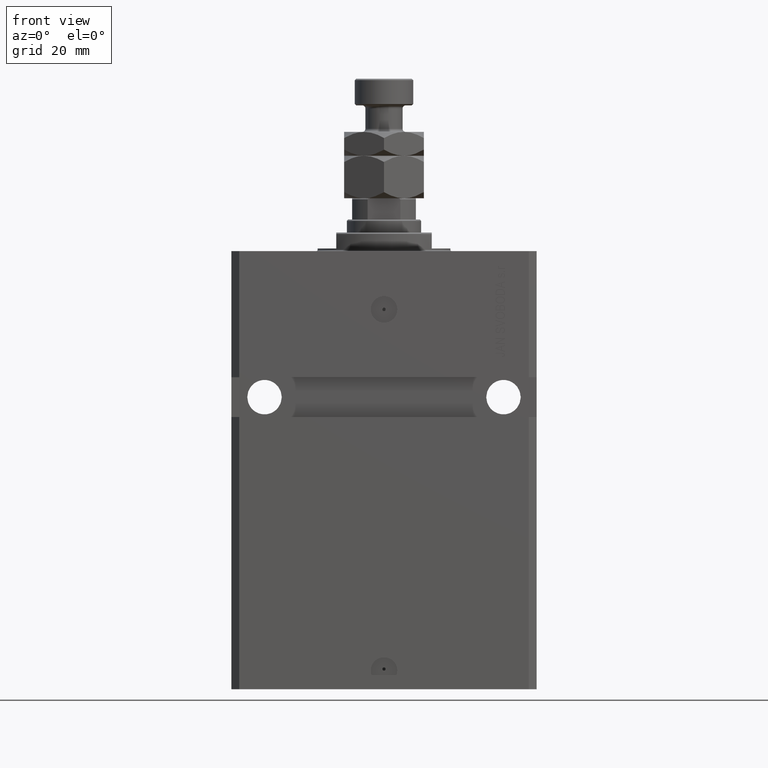
[diagram: clean part render]
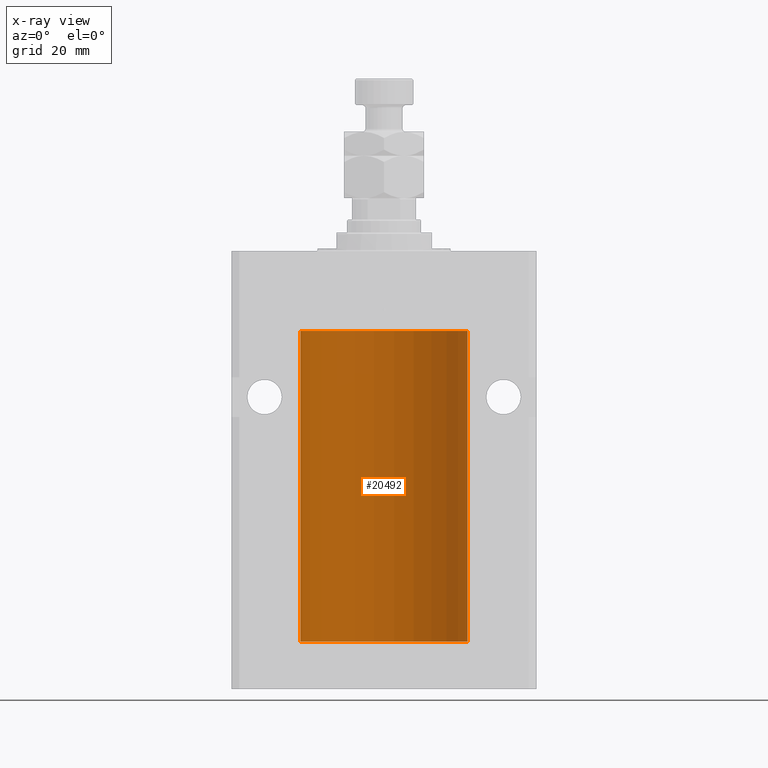
[diagram: x-ray — body ghosted, one internal face saturated and labeled with its STEP entity id]
A machine part, front view, then the same camera in x-ray: the body is ghosted and one INTERNAL B-rep face — a face not visible from any outside direction — is saturated and labeled: STEP entity #20492.
In plain terms, the highlighted cylindrical surface (partial cylindrical patch) has radius 31.5 mm, axis along (0, 0, 1).
Its self-contained STEP definition (entity closure, byte-faithful):
#248 = VERTEX_POINT ( 'NONE', #50343 ) ;
#551 = ORIENTED_EDGE ( 'NONE', *, *, #17365, .T. ) ;
#1901 = VERTEX_POINT ( 'NONE', #29465 ) ;
#2516 = AXIS2_PLACEMENT_3D ( 'NONE', #15304, #30989, #10927 ) ;
#3177 = LINE ( 'NONE', #18843, #30800 ) ;
#4039 = ORIENTED_EDGE ( 'NONE', *, *, #39765, .T. ) ;
#5183 = CARTESIAN_POINT ( 'NONE',  ( -31.49851563474691929, 0.3150284575672319121, -143.4540179115963099 ) ) ;
#7292 = CARTESIAN_POINT ( 'NONE',  ( 31.50000000000006395, 3.442404271195566139E-13, -143.3749999999967883 ) ) ;
#8657 = CARTESIAN_POINT ( 'NONE',  ( -31.50000000000000000, -1.368427456661360094E-15, -143.3750000000000000 ) ) ;
#9289 = CARTESIAN_POINT ( 'NONE',  ( -31.49380014137585704, 0.6249421240571532143, -143.8367147919029776 ) ) ;
#9339 = VECTOR ( 'NONE', #36484, 1000.000000000000000 ) ;
#10466 = LINE ( 'NONE', #33636, #31665 ) ;
#10547 = ORIENTED_EDGE ( 'NONE', *, *, #43290, .T. ) ;
#10927 = DIRECTION ( 'NONE',  ( 1.000000000000000000, 0.000000000000000000, 0.000000000000000000 ) ) ;
#11023 = CARTESIAN_POINT ( 'NONE',  ( 31.49966575203784558, 0.1636755595825632459, -144.6087303082119320 ) ) ;
#11527 = CARTESIAN_POINT ( 'NONE',  ( 31.49527883250256721, 0.5574151849338215836, -144.3263860845475506 ) ) ;
#11777 = ORIENTED_EDGE ( 'NONE', *, *, #49232, .T. ) ;
#12634 = DIRECTION ( 'NONE',  ( 0.000000000000000000, 0.000000000000000000, 1.000000000000000000 ) ) ;
#13274 = LINE ( 'NONE', #21236, #44808 ) ;
#14193 = CARTESIAN_POINT ( 'NONE',  ( 0.000000000000000000, 0.000000000000000000, -147.1000000000000227 ) ) ;
#15304 = CARTESIAN_POINT ( 'NONE',  ( 0.000000000000000000, 0.000000000000000000, -147.1000000000000227 ) ) ;
#15721 = DIRECTION ( 'NONE',  ( 1.000000000000000000, 0.000000000000000000, 0.000000000000000000 ) ) ;
#15960 = VERTEX_POINT ( 'NONE', #8657 ) ;
#16161 = VERTEX_POINT ( 'NONE', #41081 ) ;
#16257 = CARTESIAN_POINT ( 'NONE',  ( -31.49526081842315151, 0.5587119163470705141, -144.3251151309305556 ) ) ;
#16582 = ORIENTED_EDGE ( 'NONE', *, *, #34754, .T. ) ;
#16611 = ORIENTED_EDGE ( 'NONE', *, *, #18756, .F. ) ;
#16761 = CARTESIAN_POINT ( 'NONE',  ( -31.50000000000000000, -1.368427456661360094E-15, -143.3750000000000000 ) ) ;
#16808 = CARTESIAN_POINT ( 'NONE',  ( -31.50000000000006395, 3.480980645563073824E-13, -144.6250000000032401 ) ) ;
#17365 = EDGE_CURVE ( 'NONE', #33086, #33574, #37023, .T. ) ;
#18101 = AXIS2_PLACEMENT_3D ( 'NONE', #20589, #12634, #15721 ) ;
#18552 = DIRECTION ( 'NONE',  ( -0.000000000000000000, -0.000000000000000000, 1.000000000000000000 ) ) ;
#18756 = EDGE_CURVE ( 'NONE', #248, #43624, #24683, .T. ) ;
#18843 = CARTESIAN_POINT ( 'NONE',  ( 31.50000000000000000, 0.000000000000000000, -147.1000000000000227 ) ) ;
#19503 = CARTESIAN_POINT ( 'NONE',  ( 31.50000000000000000, 3.210795403918932462E-15, -144.6250000000000284 ) ) ;
#20352 = CARTESIAN_POINT ( 'NONE',  ( -31.49528028230855270, 0.5573323339569571377, -143.6734900881932049 ) ) ;
#20492 = ADVANCED_FACE ( 'NONE', ( #21154 ), #29882, .F. ) ;
#20507 = CARTESIAN_POINT ( 'NONE',  ( -31.50000000000000000, 3.857637417314162689E-15, -147.1000000000000227 ) ) ;
#20589 = CARTESIAN_POINT ( 'NONE',  ( 0.000000000000000000, 0.000000000000000000, -30.10000000000000142 ) ) ;
#21154 = FACE_OUTER_BOUND ( 'NONE', #32640, .T. ) ;
#21236 = CARTESIAN_POINT ( 'NONE',  ( -31.50000000000000000, 3.857637417314162689E-15, -147.1000000000000227 ) ) ;
#22102 = ORIENTED_EDGE ( 'NONE', *, *, #28830, .F. ) ;
#22531 = DIRECTION ( 'NONE',  ( -0.000000000000000000, -0.000000000000000000, 1.000000000000000000 ) ) ;
#24196 = CARTESIAN_POINT ( 'NONE',  ( -31.49770767031179730, 0.3843648832734325449, -143.5004608125965717 ) ) ;
#24683 = CIRCLE ( 'NONE', #2516, 31.50000000000000000 ) ;
#24708 = CARTESIAN_POINT ( 'NONE',  ( -31.49853548231893541, 0.3253851488062096120, -144.5585547052568813 ) ) ;
#25396 = ORIENTED_EDGE ( 'NONE', *, *, #47898, .F. ) ;
#27073 = CARTESIAN_POINT ( 'NONE',  ( 31.50000000000000000, 0.1631291455194404383, -143.3750000000001705 ) ) ;
#28054 = AXIS2_PLACEMENT_3D ( 'NONE', #14193, #18552, #38375 ) ;
#28830 = EDGE_CURVE ( 'NONE', #43624, #47493, #39573, .T. ) ;
#28884 = VERTEX_POINT ( 'NONE', #44720 ) ;
#29465 = CARTESIAN_POINT ( 'NONE',  ( 31.50000000000000000, 3.210795403918932462E-15, -144.6250000000000284 ) ) ;
#29882 = CYLINDRICAL_SURFACE ( 'NONE', #28054, 31.50000000000000000 ) ;
#30201 = CARTESIAN_POINT ( 'NONE',  ( 31.49526225382467359, 0.5586305680866342493, -143.6747616062214945 ) ) ;
#30442 = CARTESIAN_POINT ( 'NONE',  ( 31.49853627283156499, 0.3253078817183245874, -143.4414098940364113 ) ) ;
#30512 = CARTESIAN_POINT ( 'NONE',  ( 31.50000000000000000, 0.000000000000000000, -30.10000000000000142 ) ) ;
#30695 = CARTESIAN_POINT ( 'NONE',  ( 31.49379899281762363, 0.6249999999996213029, -143.8369703653306431 ) ) ;
#30800 = VECTOR ( 'NONE', #34543, 1000.000000000000000 ) ;
#30950 = CARTESIAN_POINT ( 'NONE',  ( 31.49379899281745665, 0.6250000000082837071, -143.9999999999990621 ) ) ;
#30989 = DIRECTION ( 'NONE',  ( 0.000000000000000000, 0.000000000000000000, 1.000000000000000000 ) ) ;
#31665 = VECTOR ( 'NONE', #22531, 1000.000000000000000 ) ;
#32186 = CARTESIAN_POINT ( 'NONE',  ( -31.49379784581974562, 0.6250577973157537270, -144.1628418484884548 ) ) ;
#32640 = EDGE_LOOP ( 'NONE', ( #22102, #16611, #11777, #41188, #10547, #16582, #551, #25396, #4039 ) ) ;
#32792 = EDGE_CURVE ( 'NONE', #1901, #28884, #37677, .T. ) ;
#33086 = VERTEX_POINT ( 'NONE', #30512 ) ;
#33574 = VERTEX_POINT ( 'NONE', #46105 ) ;
#33636 = CARTESIAN_POINT ( 'NONE',  ( 31.50000000000000000, 0.000000000000000000, -147.1000000000000227 ) ) ;
#34196 = CARTESIAN_POINT ( 'NONE',  ( 31.49770674525946390, 0.3844410175904712235, -144.4994834783447004 ) ) ;
#34543 = DIRECTION ( 'NONE',  ( -0.000000000000000000, -0.000000000000000000, 1.000000000000000000 ) ) ;
#34754 = EDGE_CURVE ( 'NONE', #16161, #33086, #3177, .T. ) ;
#35095 = B_SPLINE_CURVE_WITH_KNOTS ( 'NONE', 3,
 ( #16761, #44554, #40963, #5183, #24196, #20352, #9289, #32186, #16257, #24708, #47904, #44047 ),
 .UNSPECIFIED., .F., .F.,
 ( 4, 2, 2, 2, 2, 4 ),
 ( 1.960115120823124608E-18, 0.0002442604562134770936, 0.0004885209124269522356, 0.0009770418248539023028, 0.001465562737280852370, 0.001954083649707802437 ),
 .UNSPECIFIED. ) ;
#35205 = CARTESIAN_POINT ( 'NONE',  ( 31.49851501686591604, 0.3150934959385869871, -144.5459472188385632 ) ) ;
#36484 = DIRECTION ( 'NONE',  ( -0.000000000000000000, -0.000000000000000000, 1.000000000000000000 ) ) ;
#36955 = DIRECTION ( 'NONE',  ( -0.000000000000000000, -0.000000000000000000, 1.000000000000000000 ) ) ;
#37023 = CIRCLE ( 'NONE', #18101, 31.50000000000000000 ) ;
#37677 = B_SPLINE_CURVE_WITH_KNOTS ( 'NONE', 3,
 ( #19503, #50127, #11023, #35205, #34196, #11527, #46032, #39335 ),
 .UNSPECIFIED., .F., .F.,
 ( 4, 2, 2, 4 ),
 ( 3.120285282403795338E-18, 0.0002443157997801856493, 0.0004886315995603681545, 0.0009772631991206745094 ),
 .UNSPECIFIED. ) ;
#38375 = DIRECTION ( 'NONE',  ( 1.000000000000000000, 0.000000000000000000, 0.000000000000000000 ) ) ;
#39335 = CARTESIAN_POINT ( 'NONE',  ( 31.49379899281745665, 0.6250000000082837071, -143.9999999999990621 ) ) ;
#39573 = LINE ( 'NONE', #20507, #9339 ) ;
#39765 = EDGE_CURVE ( 'NONE', #15960, #47493, #35095, .T. ) ;
#40939 = B_SPLINE_CURVE_WITH_KNOTS ( 'NONE', 3,
 ( #30950, #30695, #30201, #30442, #27073, #7292 ),
 .UNSPECIFIED., .F., .F.,
 ( 4, 2, 4 ),
 ( 0.0009772631991206745094, 0.001465673424414204538, 0.001954083649707734349 ),
 .UNSPECIFIED. ) ;
#40963 = CARTESIAN_POINT ( 'NONE',  ( -31.49966591610108679, 0.1636376958180519592, -143.3912618999584083 ) ) ;
#41081 = CARTESIAN_POINT ( 'NONE',  ( 31.50000000000006395, 3.442404271195566139E-13, -143.3749999999967883 ) ) ;
#41188 = ORIENTED_EDGE ( 'NONE', *, *, #32792, .T. ) ;
#43290 = EDGE_CURVE ( 'NONE', #28884, #16161, #40939, .T. ) ;
#43624 = VERTEX_POINT ( 'NONE', #45594 ) ;
#44047 = CARTESIAN_POINT ( 'NONE',  ( -31.50000000000006395, 3.480980645563073824E-13, -144.6250000000032401 ) ) ;
#44554 = CARTESIAN_POINT ( 'NONE',  ( -31.50000000000000000, 0.08259258789478900187, -143.3750000000000000 ) ) ;
#44720 = CARTESIAN_POINT ( 'NONE',  ( 31.49379899281745665, 0.6250000000082837071, -143.9999999999990621 ) ) ;
#44808 = VECTOR ( 'NONE', #36955, 1000.000000000000000 ) ;
#45594 = CARTESIAN_POINT ( 'NONE',  ( -31.50000000000000000, 3.857637417314162689E-15, -147.1000000000000227 ) ) ;
#46032 = CARTESIAN_POINT ( 'NONE',  ( 31.49379899281760942, 0.6250000000003455014, -144.1631035286269764 ) ) ;
#46105 = CARTESIAN_POINT ( 'NONE',  ( -31.50000000000000000, 3.857637417314162689E-15, -30.10000000000000142 ) ) ;
#47493 = VERTEX_POINT ( 'NONE', #16808 ) ;
#47898 = EDGE_CURVE ( 'NONE', #15960, #33574, #13274, .T. ) ;
#47904 = CARTESIAN_POINT ( 'NONE',  ( -31.49999999999999289, 0.1631661150515280878, -144.6249999999998863 ) ) ;
#49232 = EDGE_CURVE ( 'NONE', #248, #1901, #10466, .T. ) ;
#50127 = CARTESIAN_POINT ( 'NONE',  ( 31.50000000000000711, 0.08261130139622302471, -144.6250000000000284 ) ) ;
#50343 = CARTESIAN_POINT ( 'NONE',  ( 31.50000000000000000, 0.000000000000000000, -147.1000000000000227 ) ) ;